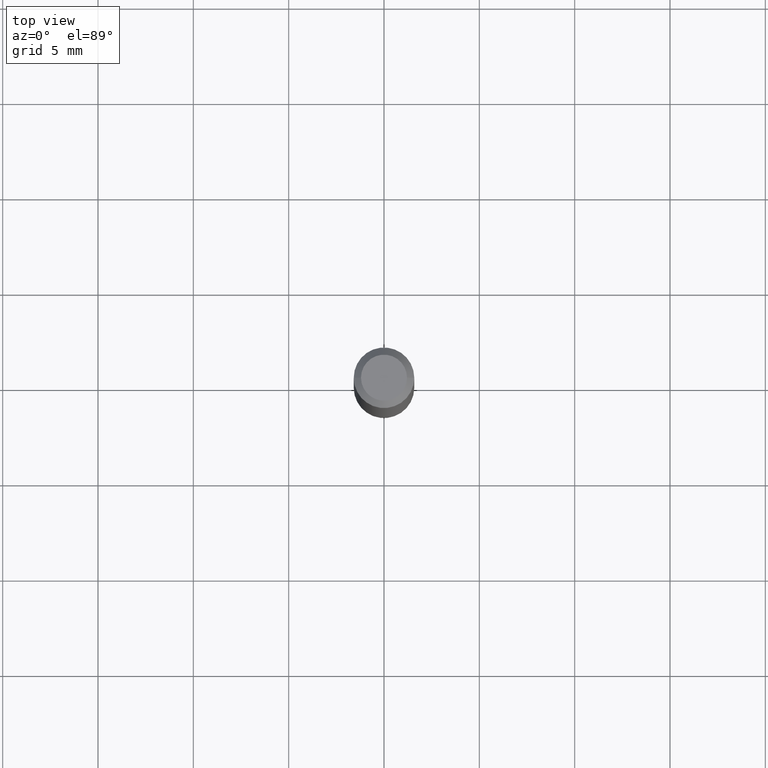
[diagram: clean part render]
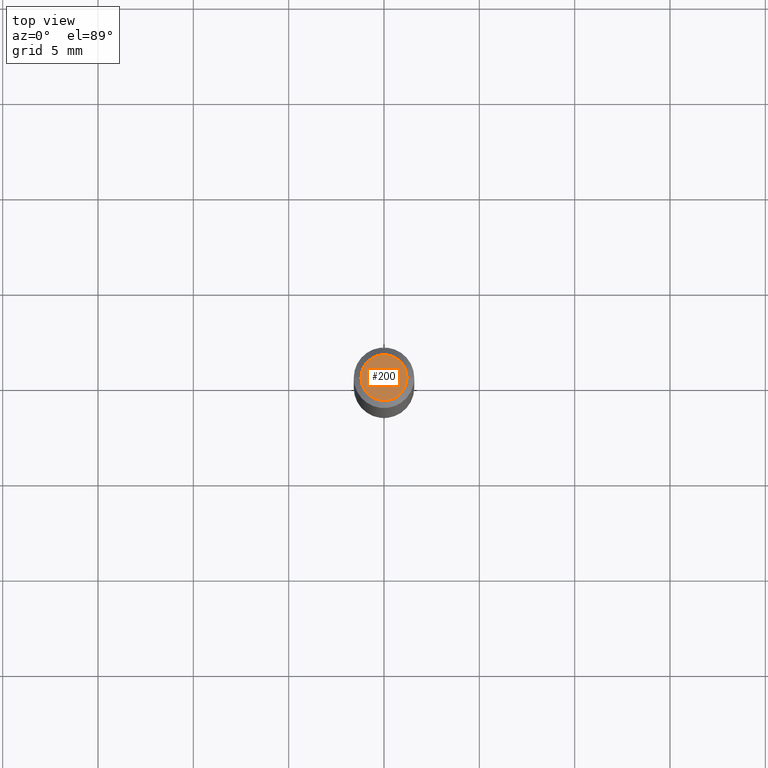
[diagram: same view with one face highlighted and labeled with its STEP entity id]
A machine part, top view. The second image highlights one B-rep face of the part: STEP entity #200.
In plain terms, the highlighted planar face has unit normal (0, -0, -1).
Its self-contained STEP definition (entity closure, byte-faithful):
#1 = CARTESIAN_POINT ( 'NONE',  ( -0.04750000000000000749, 3.578768372314221353E-16, 2.731847993664239060E-16 ) ) ;
#14 = CARTESIAN_POINT ( 'NONE',  ( -6.680649051745406845E-45, 9.538196290434862081E-31, 2.731847993664263218E-16 ) ) ;
#25 = EDGE_CURVE ( 'NONE', #137, #326, #464, .T. ) ;
#40 = CARTESIAN_POINT ( 'NONE',  ( 3.316907271900976589E-16, 0.04750000000000000749, -2.925296391183627249E-17 ) ) ;
#63 = DIRECTION ( 'NONE',  ( -2.445468806185136597E-29, 3.491481338843145583E-15, 1.000000000000000000 ) ) ;
#87 = FACE_OUTER_BOUND ( 'NONE', #248, .T. ) ;
#109 = CIRCLE ( 'NONE', #130, 0.04750000000000000749 ) ;
#130 = AXIS2_PLACEMENT_3D ( 'NONE', #411, #484, #208 ) ;
#137 = VERTEX_POINT ( 'NONE', #197 ) ;
#170 = AXIS2_PLACEMENT_3D ( 'NONE', #40, #201, #359 ) ;
#197 = CARTESIAN_POINT ( 'NONE',  ( 0.04750000000000000749, -4.035134999187568762E-16, 2.731847993664288856E-16 ) ) ;
#200 = ADVANCED_FACE ( 'NONE', ( #87 ), #398, .F. ) ;
#201 = DIRECTION ( 'NONE',  ( 2.438088387897960049E-29, -3.491481338843145188E-15, -1.000000000000000000 ) ) ;
#208 = DIRECTION ( 'NONE',  ( 1.000000000000000000, -6.982962677686266711E-15, 4.852736867747365086E-29 ) ) ;
#248 = EDGE_LOOP ( 'NONE', ( #518, #297 ) ) ;
#289 = EDGE_CURVE ( 'NONE', #326, #137, #109, .T. ) ;
#297 = ORIENTED_EDGE ( 'NONE', *, *, #25, .T. ) ;
#326 = VERTEX_POINT ( 'NONE', #1 ) ;
#334 = DIRECTION ( 'NONE',  ( 1.000000000000000000, -6.982962677686266711E-15, 4.852736867747365086E-29 ) ) ;
#359 = DIRECTION ( 'NONE',  ( -1.000000000000000000, 6.982962677686265922E-15, -4.876176775795935793E-29 ) ) ;
#398 = PLANE ( 'NONE',  #170 ) ;
#411 = CARTESIAN_POINT ( 'NONE',  ( -6.680649051745406845E-45, 9.538196290434862081E-31, 2.731847993664263218E-16 ) ) ;
#464 = CIRCLE ( 'NONE', #483, 0.04750000000000000749 ) ;
#483 = AXIS2_PLACEMENT_3D ( 'NONE', #14, #63, #334 ) ;
#484 = DIRECTION ( 'NONE',  ( -2.445468806185136597E-29, 3.491481338843145583E-15, 1.000000000000000000 ) ) ;
#518 = ORIENTED_EDGE ( 'NONE', *, *, #289, .T. ) ;